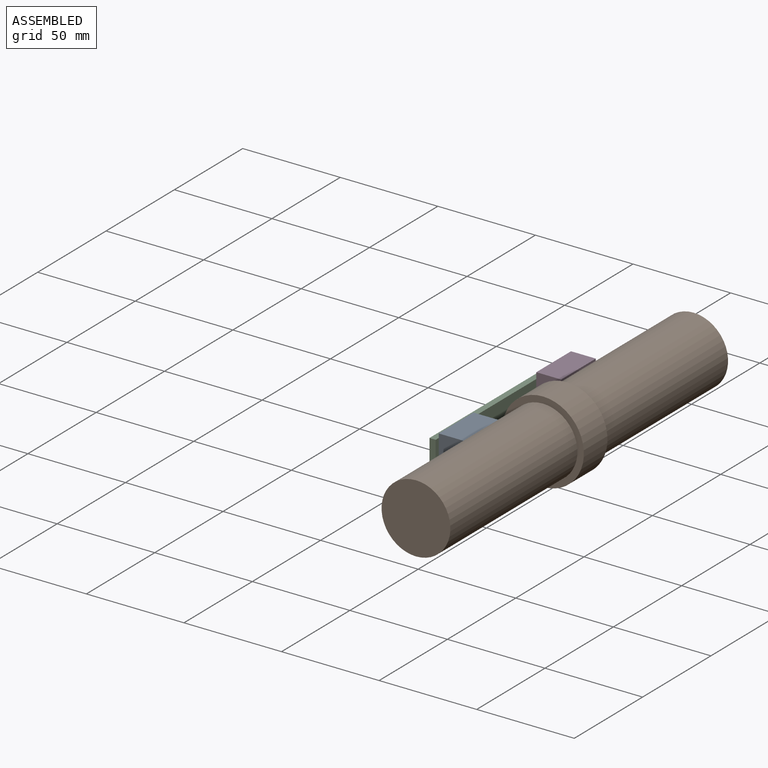
[diagram: assembled view]
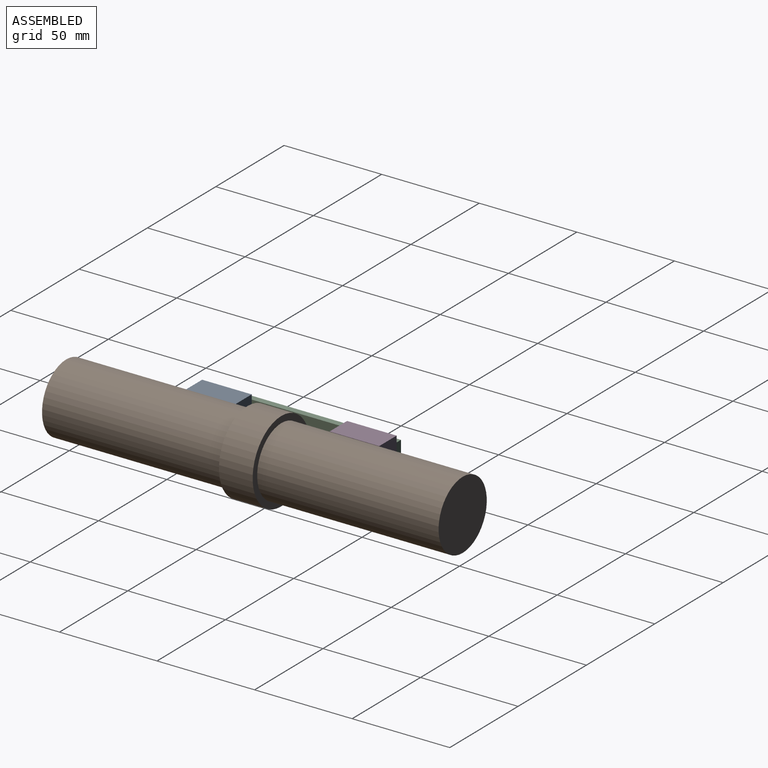
[diagram: assembled view, second angle]
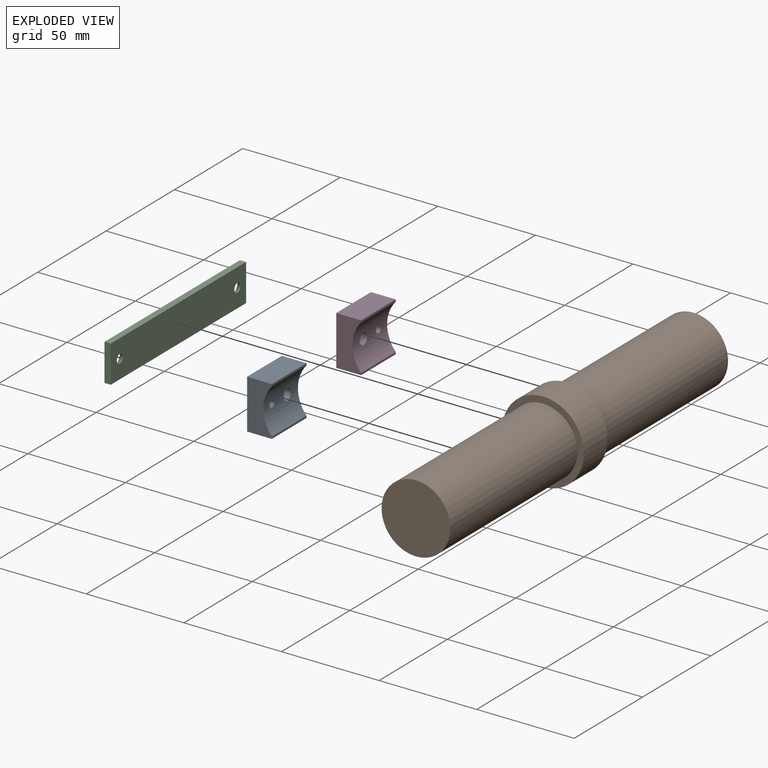
[diagram: exploded view]
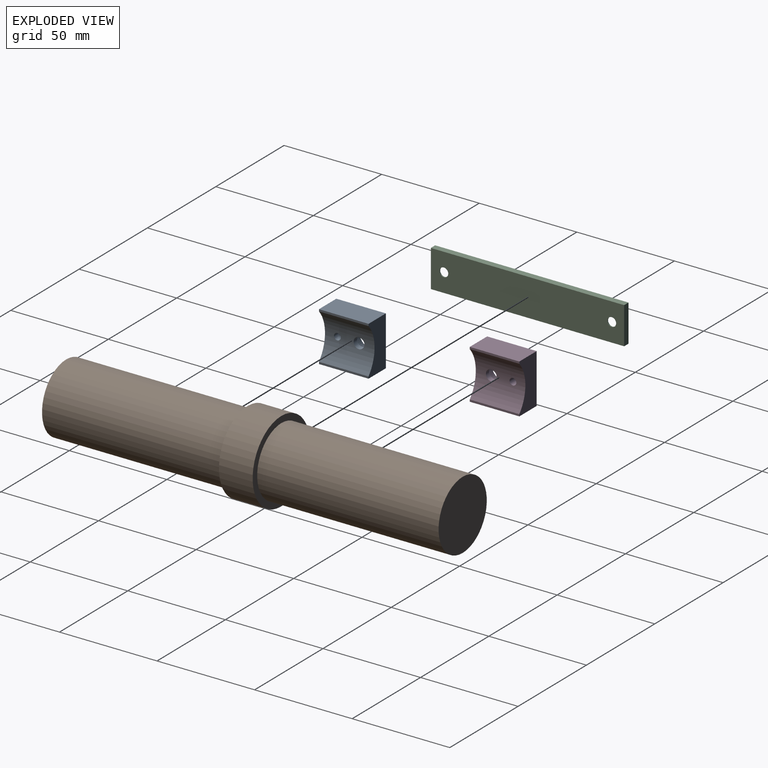
[diagram: exploded view, second angle]
ASSEMBLY  parts=4 mates=3
PART A: 12 faces, bbox 25.4x25.4x12.7 mm
  f0: cylinder r=17.63mm len=25.4mm, axis (0,-1,0), area 615mm2, adj f1,f4,f6,f7,f8,f11
  f1: plane 25.4x1.03mm, normal (0,0,1), area 26.1mm2, adj f0,f5,f6,f7
  f2: plane 25.4x25.4mm, normal (0,0,-1), area 538.8mm2, adj f3,f5,f6,f7,f10,f11
  f3: plane 25.4x12.7mm, normal (1,0,0), area 322.6mm2, adj f2,f4,f6,f7
  f4: plane 25.4x1.03mm, normal (0,0,1), area 26.1mm2, adj f0,f3,f6,f7
  f5: plane 25.4x12.7mm, normal (-1,0,0), area 322.6mm2, adj f1,f2,f6,f7
  f6: plane 25.4x12.7mm, normal (0,-1,0), area 251.9mm2, adj f0,f1,f2,f3,f4,f5
  f7: plane 25.4x12.7mm, normal (0,1,0), area 251.9mm2, adj f0,f1,f2,f3,f4,f5
  f8: cylinder r=2.75mm len=5.5mm, axis (0,0,-1), area 44mm2, adj f0,f9
  f9: plane 11.11x11.11mm, normal (0,0,-1), area 73.2mm2, adj f8,f10
  f10: cylinder r=5.56mm len=11.11mm, axis (0,0,-1), area 203.9mm2, adj f2,f9
  f11: cylinder r=1.73mm len=8.37mm, axis (0,0,-1), area 90.3mm2, adj f0,f2
PART B: 11 faces, bbox 41.9x203.2x41.9 mm
  f0: cylinder r=17.64mm len=92.96mm, axis (0,1,0), area 10290mm2, adj f1,f2,f4
  f1: plane 35.28x35.28mm, normal (0,-1,0), area 977.6mm2, adj f0
  f2: cylinder r=2.1mm len=17.64mm, axis (1,0,0), area 231.9mm2, adj f0,f3
  f3: plane 4.2x4.2mm, normal (-1,0,0), area 13.9mm2, adj f2
  f4: plane 41.88x41.88mm, normal (0,-1,0), area 400.2mm2, adj f0,f6
  f5: plane 41.88x41.88mm, normal (0,1,0), area 400.2mm2, adj f6,f10
  f6: cylinder r=20.94mm len=41.88mm, axis (0,1,0), area 2272.7mm2, adj f4,f5
  f7: plane 4.2x4.2mm, normal (-1,0,0), area 13.9mm2, adj f8
  f8: cylinder r=2.1mm len=17.64mm, axis (1,0,0), area 231.9mm2, adj f7,f10
  f9: plane 35.28x35.28mm, normal (0,1,0), area 977.6mm2, adj f10
  f10: cylinder r=17.64mm len=92.96mm, axis (0,1,0), area 10290mm2, adj f5,f8,f9
PART C: 10 faces, bbox 19.1x3.2x99.1 mm
  f0: cylinder r=2.25mm len=4.5mm, axis (0,-1,0), area 7.3mm2, adj f1,f7
  f1: cone r=2.25mm half-angle=41deg, axis (0,-1,0), area 75.3mm2, adj f0,f6
  f2: plane 19.05x3.18mm, normal (0,0,-1), area 60.5mm2, adj f3,f5,f6,f7
  f3: plane 99.06x3.18mm, normal (1,0,0), area 314.5mm2, adj f2,f4,f6,f7
  f4: plane 19.05x3.18mm, normal (0,0,1), area 60.5mm2, adj f3,f5,f6,f7
  f5: plane 99.06x3.18mm, normal (-1,0,0), area 314.5mm2, adj f2,f4,f6,f7
  f6: plane 99.06x19.05mm, normal (0,-1,0), area 1756.5mm2, adj f1,f2,f3,f4,f5,f9
  f7: plane 99.06x19.05mm, normal (0,1,0), area 1855.3mm2, adj f0,f2,f3,f4,f5,f8
  f8: cylinder r=2.25mm len=4.5mm, axis (0,-1,0), area 7.3mm2, adj f7,f9
  f9: cone r=2.25mm half-angle=41deg, axis (0,-1,0), area 75.3mm2, adj f6,f8
PART D: same geometry as A
PLACE A rot(axis=(0,1,0),90deg) t=(-18.58,-36.66,0)mm
PLACE B at identity fixed
PLACE C rot(axis=(0.58,0.58,-0.58),120deg) t=(-26.26,-0.17,0)mm
PLACE D rot(axis=(-0.71,0,-0.71),180deg) t=(-19.91,36.66,0)mm
MATE fastened C.f8 <-> D.f11  axis (1,0,0) through (-26.26,43.01,0)mm
MATE cylindrical B.f2 <-> A.f8  axis (1,0,0) through (-17.75,-31.9,0)mm
MATE cylindrical B.f8 <-> D.f8  axis (1,0,0) through (-17.75,31.9,0)mm
